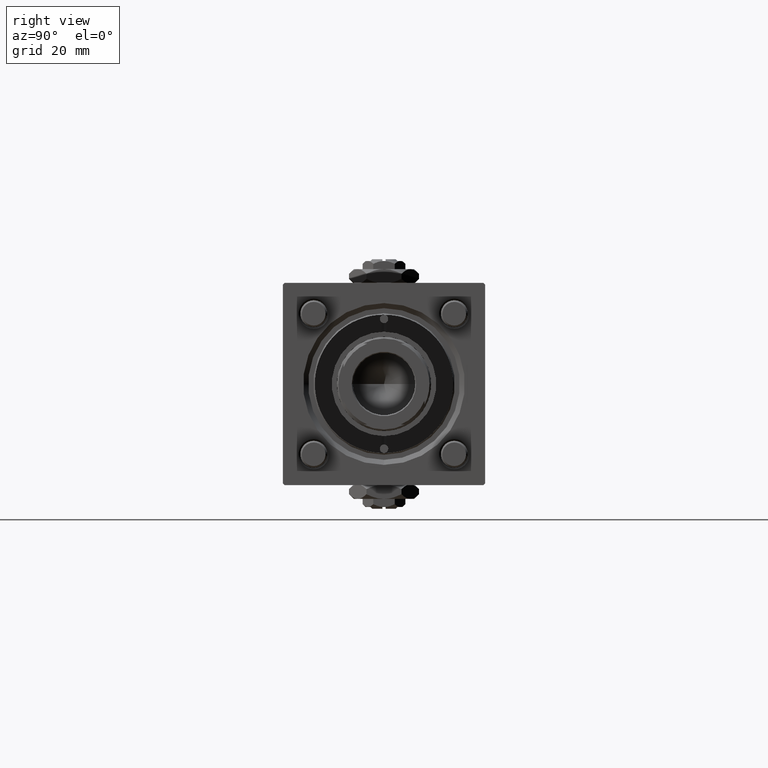
[diagram: clean part render]
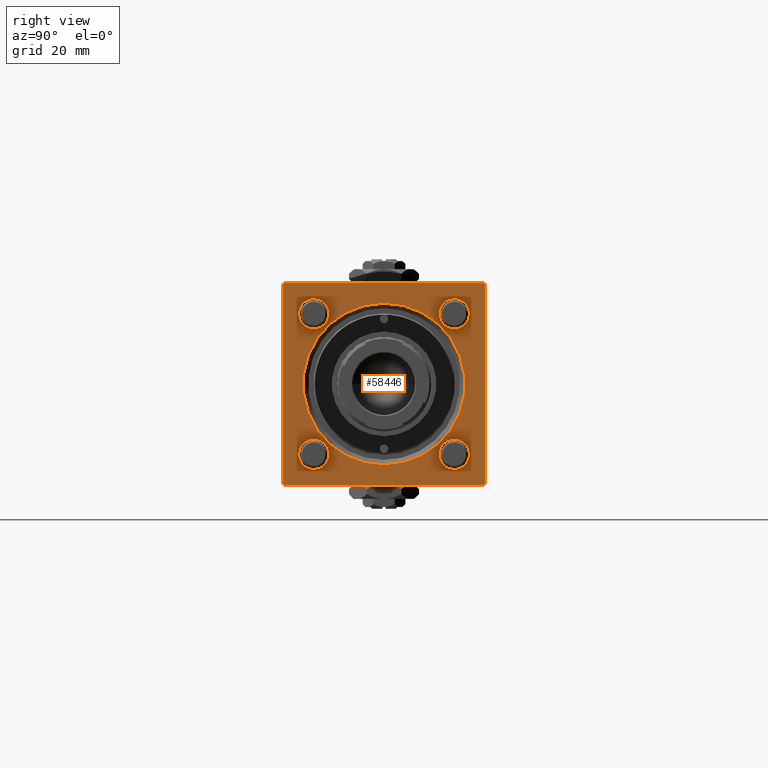
[diagram: same view with one face highlighted and labeled with its STEP entity id]
A machine part, right view. The second image highlights one B-rep face of the part: STEP entity #58446.
In plain terms, the highlighted planar face has unit normal (-1, 0, 0).
Its self-contained STEP definition (entity closure, byte-faithful):
#1055 = LINE ( 'NONE', #36326, #2086 ) ;
#1437 = CARTESIAN_POINT ( 'NONE',  ( 148.0000000000000000, -20.84999999999999076, -25.35000000000002274 ) ) ;
#1673 = VERTEX_POINT ( 'NONE', #3050 ) ;
#1739 = CIRCLE ( 'NONE', #49404, 4.500000000000017764 ) ;
#2086 = VECTOR ( 'NONE', #27654, 1000.000000000000114 ) ;
#2499 = VERTEX_POINT ( 'NONE', #52045 ) ;
#2566 = VERTEX_POINT ( 'NONE', #3059 ) ;
#3050 = CARTESIAN_POINT ( 'NONE',  ( 148.0000000000000000, 20.84999999999999787, -25.35000000000001918 ) ) ;
#3059 = CARTESIAN_POINT ( 'NONE',  ( 148.0000000000000000, 20.84999999999999787, -16.34999999999998366 ) ) ;
#3308 = VECTOR ( 'NONE', #42926, 1000.000000000000114 ) ;
#3311 = DIRECTION ( 'NONE',  ( -1.000000000000000000, 0.000000000000000000, -0.000000000000000000 ) ) ;
#3338 = CARTESIAN_POINT ( 'NONE',  ( 148.0000000000000000, 30.00000000000000000, 29.50000000000000000 ) ) ;
#3483 = CARTESIAN_POINT ( 'NONE',  ( 148.0000000000000000, 30.00000000000000000, -29.99999999999999289 ) ) ;
#3666 = CIRCLE ( 'NONE', #52299, 24.00000000000003908 ) ;
#4091 = ORIENTED_EDGE ( 'NONE', *, *, #41687, .T. ) ;
#4620 = ORIENTED_EDGE ( 'NONE', *, *, #36007, .T. ) ;
#5380 = VERTEX_POINT ( 'NONE', #51140 ) ;
#5405 = CARTESIAN_POINT ( 'NONE',  ( 148.0000000000000000, 30.00000000000000000, 30.00000000000000000 ) ) ;
#5996 = VERTEX_POINT ( 'NONE', #3338 ) ;
#6163 = ORIENTED_EDGE ( 'NONE', *, *, #22118, .T. ) ;
#6457 = ORIENTED_EDGE ( 'NONE', *, *, #44571, .T. ) ;
#6465 = EDGE_LOOP ( 'NONE', ( #27096, #6163 ) ) ;
#6752 = AXIS2_PLACEMENT_3D ( 'NONE', #32300, #36505, #41847 ) ;
#6909 = LINE ( 'NONE', #52568, #20029 ) ;
#7672 = CARTESIAN_POINT ( 'NONE',  ( 148.0000000000000000, 0.000000000000000000, 0.000000000000000000 ) ) ;
#7974 = VERTEX_POINT ( 'NONE', #34741 ) ;
#8055 = EDGE_LOOP ( 'NONE', ( #51291, #44471, #46481, #16963, #31157, #4091, #19484, #6457 ) ) ;
#8400 = VERTEX_POINT ( 'NONE', #45452 ) ;
#8760 = CIRCLE ( 'NONE', #51629, 4.500000000000017764 ) ;
#9322 = CIRCLE ( 'NONE', #19824, 4.500000000000017764 ) ;
#9381 = FACE_OUTER_BOUND ( 'NONE', #8055, .T. ) ;
#9623 = LINE ( 'NONE', #46048, #21171 ) ;
#10824 = DIRECTION ( 'NONE',  ( 0.000000000000000000, 0.000000000000000000, 1.000000000000000000 ) ) ;
#11147 = EDGE_CURVE ( 'NONE', #11162, #56951, #48239, .T. ) ;
#11162 = VERTEX_POINT ( 'NONE', #31313 ) ;
#11557 = CARTESIAN_POINT ( 'NONE',  ( 148.0000000000000000, -20.84999999999999076, 20.85000000000000497 ) ) ;
#11755 = CARTESIAN_POINT ( 'NONE',  ( 148.0000000000000000, -20.84999999999999076, -20.85000000000000497 ) ) ;
#12304 = DIRECTION ( 'NONE',  ( 0.000000000000000000, 0.000000000000000000, 1.000000000000000000 ) ) ;
#13857 = FACE_BOUND ( 'NONE', #27489, .T. ) ;
#14000 = ORIENTED_EDGE ( 'NONE', *, *, #16510, .T. ) ;
#14018 = DIRECTION ( 'NONE',  ( -0.000000000000000000, -0.7071067811865474617, -0.7071067811865474617 ) ) ;
#14091 = DIRECTION ( 'NONE',  ( 0.000000000000000000, 0.000000000000000000, -1.000000000000000000 ) ) ;
#15433 = CARTESIAN_POINT ( 'NONE',  ( 148.0000000000000000, -29.50000000000000000, -30.00000000000000000 ) ) ;
#16158 = DIRECTION ( 'NONE',  ( -1.000000000000000000, 0.000000000000000000, -0.000000000000000000 ) ) ;
#16219 = VECTOR ( 'NONE', #16930, 1000.000000000000000 ) ;
#16299 = DIRECTION ( 'NONE',  ( 0.000000000000000000, 0.7071067811865474617, -0.7071067811865474617 ) ) ;
#16319 = DIRECTION ( 'NONE',  ( -1.000000000000000000, 0.000000000000000000, -0.000000000000000000 ) ) ;
#16510 = EDGE_CURVE ( 'NONE', #48251, #22026, #40645, .T. ) ;
#16515 = CARTESIAN_POINT ( 'NONE',  ( 148.0000000000000000, 0.000000000000000000, 0.000000000000000000 ) ) ;
#16930 = DIRECTION ( 'NONE',  ( 0.000000000000000000, -1.000000000000000000, -1.156482317317871478E-16 ) ) ;
#16963 = ORIENTED_EDGE ( 'NONE', *, *, #49700, .T. ) ;
#18047 = PLANE ( 'NONE',  #33717 ) ;
#18348 = CARTESIAN_POINT ( 'NONE',  ( 148.0000000000000000, 0.000000000000000000, 0.000000000000000000 ) ) ;
#19103 = VECTOR ( 'NONE', #14018, 1000.000000000000114 ) ;
#19385 = EDGE_CURVE ( 'NONE', #56951, #11162, #57872, .T. ) ;
#19484 = ORIENTED_EDGE ( 'NONE', *, *, #33554, .T. ) ;
#19824 = AXIS2_PLACEMENT_3D ( 'NONE', #11557, #16319, #52145 ) ;
#20029 = VECTOR ( 'NONE', #29328, 1000.000000000000000 ) ;
#20137 = EDGE_CURVE ( 'NONE', #29392, #40496, #9322, .T. ) ;
#20472 = EDGE_LOOP ( 'NONE', ( #33660, #24228 ) ) ;
#21171 = VECTOR ( 'NONE', #14091, 1000.000000000000000 ) ;
#21996 = DIRECTION ( 'NONE',  ( 0.000000000000000000, 0.000000000000000000, 1.000000000000000000 ) ) ;
#22026 = VERTEX_POINT ( 'NONE', #24582 ) ;
#22118 = EDGE_CURVE ( 'NONE', #2566, #1673, #1739, .T. ) ;
#22388 = VERTEX_POINT ( 'NONE', #34634 ) ;
#22530 = DIRECTION ( 'NONE',  ( -1.000000000000000000, 0.000000000000000000, -0.000000000000000000 ) ) ;
#23120 = DIRECTION ( 'NONE',  ( -0.000000000000000000, 0.000000000000000000, 1.000000000000000000 ) ) ;
#24167 = LINE ( 'NONE', #41772, #19103 ) ;
#24228 = ORIENTED_EDGE ( 'NONE', *, *, #28914, .T. ) ;
#24582 = CARTESIAN_POINT ( 'NONE',  ( 148.0000000000000000, -20.84999999999999076, -16.34999999999998721 ) ) ;
#24843 = CARTESIAN_POINT ( 'NONE',  ( 148.0000000000000000, -30.00000000000000000, 29.49999999999999289 ) ) ;
#24971 = VERTEX_POINT ( 'NONE', #32702 ) ;
#25481 = AXIS2_PLACEMENT_3D ( 'NONE', #56020, #29466, #55727 ) ;
#26038 = DIRECTION ( 'NONE',  ( -1.000000000000000000, 0.000000000000000000, -0.000000000000000000 ) ) ;
#26560 = EDGE_CURVE ( 'NONE', #1673, #2566, #42923, .T. ) ;
#27096 = ORIENTED_EDGE ( 'NONE', *, *, #26560, .T. ) ;
#27330 = VERTEX_POINT ( 'NONE', #56494 ) ;
#27489 = EDGE_LOOP ( 'NONE', ( #32745, #44686 ) ) ;
#27654 = DIRECTION ( 'NONE',  ( -0.000000000000000000, 0.7071067811865474617, 0.7071067811865474617 ) ) ;
#28125 = LINE ( 'NONE', #5405, #43921 ) ;
#28860 = ORIENTED_EDGE ( 'NONE', *, *, #11147, .T. ) ;
#28914 = EDGE_CURVE ( 'NONE', #51893, #8400, #3666, .T. ) ;
#29328 = DIRECTION ( 'NONE',  ( 0.000000000000000000, 0.000000000000000000, -1.000000000000000000 ) ) ;
#29392 = VERTEX_POINT ( 'NONE', #34874 ) ;
#29439 = FACE_BOUND ( 'NONE', #6465, .T. ) ;
#29466 = DIRECTION ( 'NONE',  ( -1.000000000000000000, 0.000000000000000000, -0.000000000000000000 ) ) ;
#30536 = DIRECTION ( 'NONE',  ( -1.000000000000000000, 0.000000000000000000, -0.000000000000000000 ) ) ;
#31044 = VERTEX_POINT ( 'NONE', #24843 ) ;
#31097 = EDGE_CURVE ( 'NONE', #5996, #5380, #6909, .T. ) ;
#31157 = ORIENTED_EDGE ( 'NONE', *, *, #31097, .F. ) ;
#31313 = CARTESIAN_POINT ( 'NONE',  ( 148.0000000000000000, 20.84999999999999787, 25.35000000000001918 ) ) ;
#31486 = FACE_BOUND ( 'NONE', #20472, .T. ) ;
#32300 = CARTESIAN_POINT ( 'NONE',  ( 148.0000000000000000, -20.84999999999999076, 20.85000000000000497 ) ) ;
#32505 = AXIS2_PLACEMENT_3D ( 'NONE', #16515, #49315, #44853 ) ;
#32701 = EDGE_CURVE ( 'NONE', #7974, #2499, #39624, .T. ) ;
#32702 = CARTESIAN_POINT ( 'NONE',  ( 148.0000000000000000, 29.50000000000000000, 30.00000000000000000 ) ) ;
#32745 = ORIENTED_EDGE ( 'NONE', *, *, #20137, .T. ) ;
#33554 = EDGE_CURVE ( 'NONE', #24971, #22388, #28125, .T. ) ;
#33660 = ORIENTED_EDGE ( 'NONE', *, *, #34147, .T. ) ;
#33717 = AXIS2_PLACEMENT_3D ( 'NONE', #18348, #22530, #23120 ) ;
#34147 = EDGE_CURVE ( 'NONE', #8400, #51893, #58205, .T. ) ;
#34314 = EDGE_CURVE ( 'NONE', #40496, #29392, #53430, .T. ) ;
#34634 = CARTESIAN_POINT ( 'NONE',  ( 148.0000000000000000, -29.50000000000000000, 29.99999999999999289 ) ) ;
#34741 = CARTESIAN_POINT ( 'NONE',  ( 148.0000000000000000, 29.50000000000000000, -29.99999999999999289 ) ) ;
#34874 = CARTESIAN_POINT ( 'NONE',  ( 148.0000000000000000, -20.84999999999999076, 16.34999999999998721 ) ) ;
#36007 = EDGE_CURVE ( 'NONE', #22026, #48251, #8760, .T. ) ;
#36326 = CARTESIAN_POINT ( 'NONE',  ( 148.0000000000000000, 30.00000000000000000, -29.49999999999999289 ) ) ;
#36505 = DIRECTION ( 'NONE',  ( -1.000000000000000000, 0.000000000000000000, -0.000000000000000000 ) ) ;
#38284 = CARTESIAN_POINT ( 'NONE',  ( 148.0000000000000000, -20.84999999999999076, -20.85000000000000497 ) ) ;
#39015 = CARTESIAN_POINT ( 'NONE',  ( 148.0000000000000000, 29.50000000000000000, 30.00000000000000000 ) ) ;
#39104 = AXIS2_PLACEMENT_3D ( 'NONE', #44224, #3311, #39737 ) ;
#39177 = CARTESIAN_POINT ( 'NONE',  ( 148.0000000000000000, 20.84999999999999787, 16.34999999999998366 ) ) ;
#39499 = DIRECTION ( 'NONE',  ( 0.000000000000000000, 0.000000000000000000, 1.000000000000000000 ) ) ;
#39624 = LINE ( 'NONE', #3483, #16219 ) ;
#39737 = DIRECTION ( 'NONE',  ( 0.000000000000000000, 0.000000000000000000, 1.000000000000000000 ) ) ;
#40244 = CARTESIAN_POINT ( 'NONE',  ( 148.0000000000000000, -20.84999999999999076, 25.35000000000002274 ) ) ;
#40272 = DIRECTION ( 'NONE',  ( 0.000000000000000000, 0.000000000000000000, 1.000000000000000000 ) ) ;
#40496 = VERTEX_POINT ( 'NONE', #40244 ) ;
#40645 = CIRCLE ( 'NONE', #45422, 4.500000000000017764 ) ;
#41687 = EDGE_CURVE ( 'NONE', #5996, #24971, #52732, .T. ) ;
#41772 = CARTESIAN_POINT ( 'NONE',  ( 148.0000000000000000, -30.00000000000000000, 29.49999999999999289 ) ) ;
#41847 = DIRECTION ( 'NONE',  ( 0.000000000000000000, 0.000000000000000000, 1.000000000000000000 ) ) ;
#42923 = CIRCLE ( 'NONE', #39104, 4.500000000000017764 ) ;
#42926 = DIRECTION ( 'NONE',  ( 0.000000000000000000, -0.7071067811865474617, 0.7071067811865474617 ) ) ;
#43063 = CARTESIAN_POINT ( 'NONE',  ( 148.0000000000000000, 2.939152317953652628E-15, 24.00000000000003908 ) ) ;
#43921 = VECTOR ( 'NONE', #51376, 1000.000000000000000 ) ;
#44224 = CARTESIAN_POINT ( 'NONE',  ( 148.0000000000000000, 20.84999999999999787, -20.85000000000000142 ) ) ;
#44471 = ORIENTED_EDGE ( 'NONE', *, *, #54313, .T. ) ;
#44571 = EDGE_CURVE ( 'NONE', #22388, #31044, #24167, .T. ) ;
#44677 = DIRECTION ( 'NONE',  ( -1.000000000000000000, 0.000000000000000000, -0.000000000000000000 ) ) ;
#44686 = ORIENTED_EDGE ( 'NONE', *, *, #34314, .T. ) ;
#44853 = DIRECTION ( 'NONE',  ( 0.000000000000000000, 0.000000000000000000, 1.000000000000000000 ) ) ;
#45422 = AXIS2_PLACEMENT_3D ( 'NONE', #11755, #30536, #39499 ) ;
#45452 = CARTESIAN_POINT ( 'NONE',  ( 148.0000000000000000, 0.000000000000000000, -24.00000000000003908 ) ) ;
#45647 = EDGE_LOOP ( 'NONE', ( #14000, #4620 ) ) ;
#46048 = CARTESIAN_POINT ( 'NONE',  ( 148.0000000000000000, -30.00000000000000000, 29.99999999999999289 ) ) ;
#46481 = ORIENTED_EDGE ( 'NONE', *, *, #32701, .F. ) ;
#47640 = FACE_BOUND ( 'NONE', #53939, .T. ) ;
#48239 = CIRCLE ( 'NONE', #52993, 4.500000000000017764 ) ;
#48251 = VERTEX_POINT ( 'NONE', #1437 ) ;
#48795 = FACE_BOUND ( 'NONE', #45647, .T. ) ;
#49315 = DIRECTION ( 'NONE',  ( -1.000000000000000000, 0.000000000000000000, -0.000000000000000000 ) ) ;
#49404 = AXIS2_PLACEMENT_3D ( 'NONE', #52026, #26038, #12304 ) ;
#49700 = EDGE_CURVE ( 'NONE', #7974, #5380, #1055, .T. ) ;
#49863 = ORIENTED_EDGE ( 'NONE', *, *, #19385, .T. ) ;
#51140 = CARTESIAN_POINT ( 'NONE',  ( 148.0000000000000000, 30.00000000000000000, -29.49999999999997868 ) ) ;
#51291 = ORIENTED_EDGE ( 'NONE', *, *, #54700, .T. ) ;
#51376 = DIRECTION ( 'NONE',  ( 0.000000000000000000, -1.000000000000000000, -1.156482317317871478E-16 ) ) ;
#51629 = AXIS2_PLACEMENT_3D ( 'NONE', #38284, #16158, #10824 ) ;
#51678 = VECTOR ( 'NONE', #16299, 1000.000000000000114 ) ;
#51893 = VERTEX_POINT ( 'NONE', #43063 ) ;
#52026 = CARTESIAN_POINT ( 'NONE',  ( 148.0000000000000000, 20.84999999999999787, -20.85000000000000142 ) ) ;
#52045 = CARTESIAN_POINT ( 'NONE',  ( 148.0000000000000000, -29.50000000000000000, -30.00000000000000000 ) ) ;
#52145 = DIRECTION ( 'NONE',  ( 0.000000000000000000, 0.000000000000000000, 1.000000000000000000 ) ) ;
#52299 = AXIS2_PLACEMENT_3D ( 'NONE', #7672, #44677, #21996 ) ;
#52411 = LINE ( 'NONE', #15433, #51678 ) ;
#52568 = CARTESIAN_POINT ( 'NONE',  ( 148.0000000000000000, 30.00000000000000000, 30.00000000000000000 ) ) ;
#52732 = LINE ( 'NONE', #39015, #3308 ) ;
#52993 = AXIS2_PLACEMENT_3D ( 'NONE', #58162, #53097, #40272 ) ;
#53097 = DIRECTION ( 'NONE',  ( -1.000000000000000000, 0.000000000000000000, -0.000000000000000000 ) ) ;
#53430 = CIRCLE ( 'NONE', #6752, 4.500000000000017764 ) ;
#53939 = EDGE_LOOP ( 'NONE', ( #49863, #28860 ) ) ;
#54313 = EDGE_CURVE ( 'NONE', #27330, #2499, #52411, .T. ) ;
#54700 = EDGE_CURVE ( 'NONE', #31044, #27330, #9623, .T. ) ;
#55727 = DIRECTION ( 'NONE',  ( 0.000000000000000000, 0.000000000000000000, 1.000000000000000000 ) ) ;
#56020 = CARTESIAN_POINT ( 'NONE',  ( 148.0000000000000000, 20.84999999999999787, 20.85000000000000142 ) ) ;
#56494 = CARTESIAN_POINT ( 'NONE',  ( 148.0000000000000000, -30.00000000000000000, -29.49999999999998579 ) ) ;
#56951 = VERTEX_POINT ( 'NONE', #39177 ) ;
#57872 = CIRCLE ( 'NONE', #25481, 4.500000000000017764 ) ;
#58162 = CARTESIAN_POINT ( 'NONE',  ( 148.0000000000000000, 20.84999999999999787, 20.85000000000000142 ) ) ;
#58205 = CIRCLE ( 'NONE', #32505, 24.00000000000003908 ) ;
#58446 = ADVANCED_FACE ( 'NONE', ( #48795, #29439, #47640, #13857, #31486, #9381 ), #18047, .F. ) ;